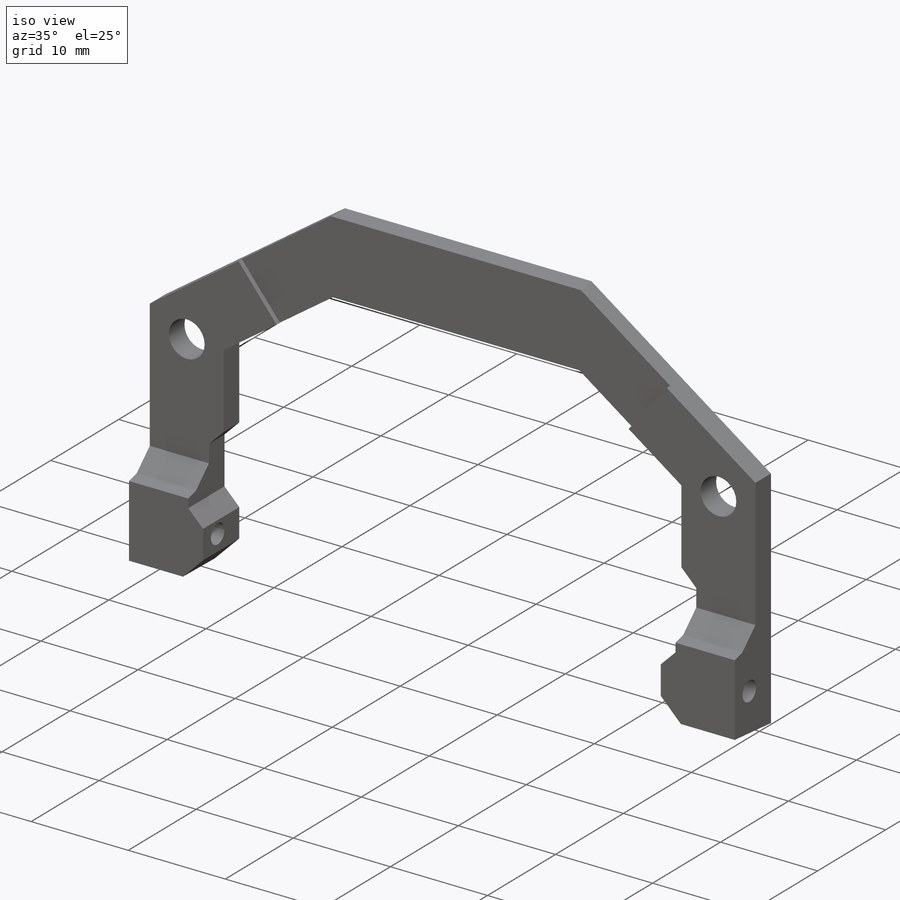
[diagram: iso view]
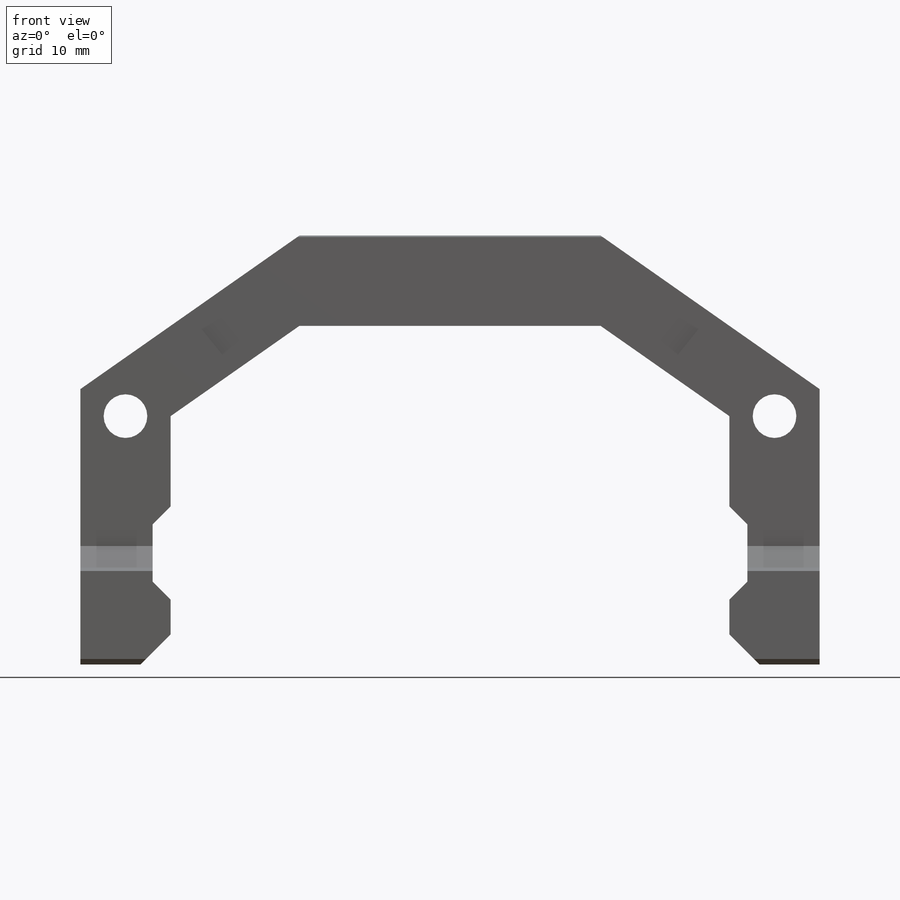
[diagram: front view]
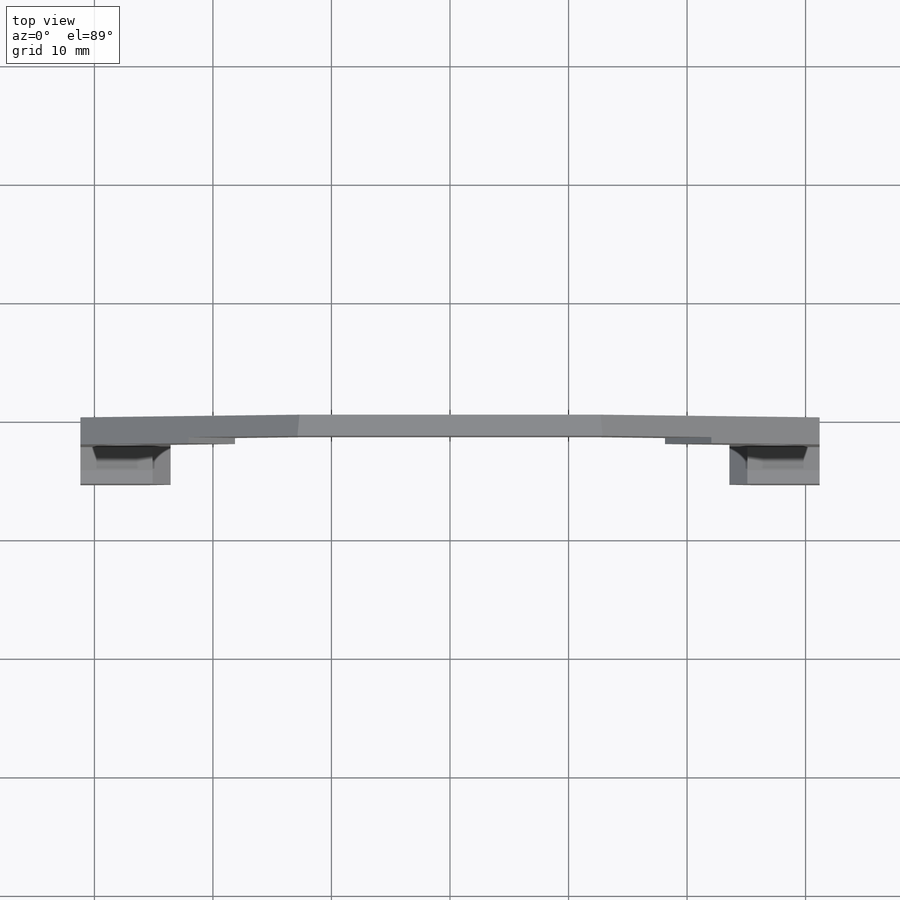
[diagram: top view]
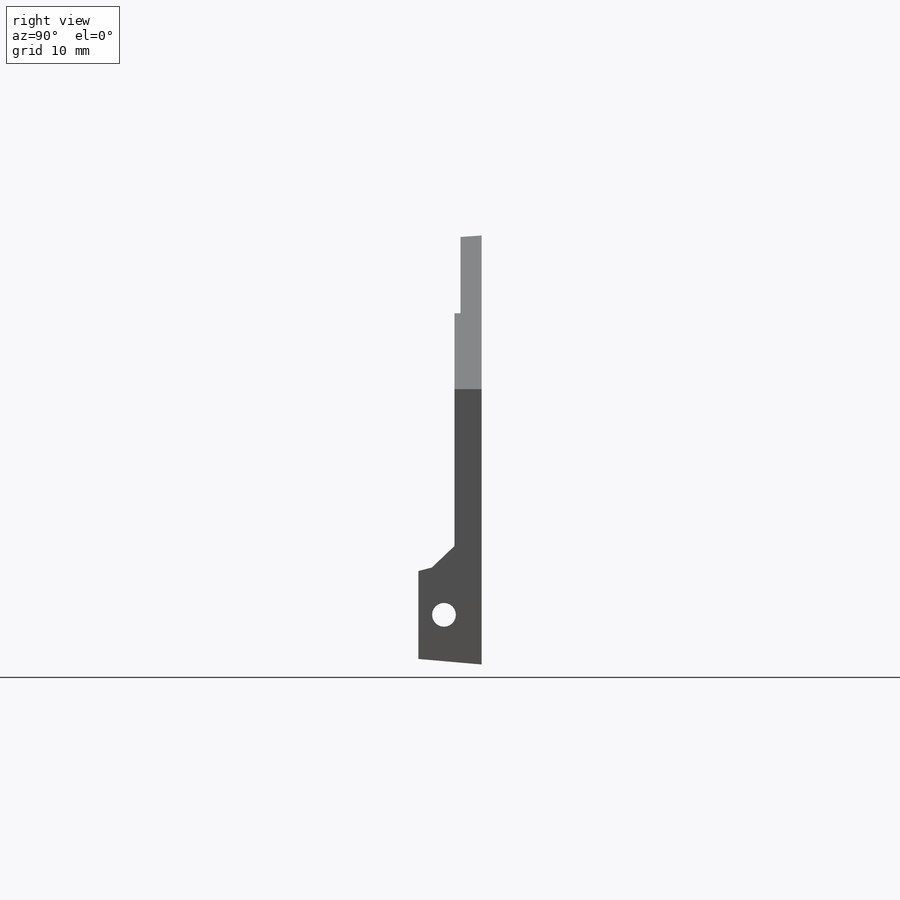
[diagram: right view]
SOLIDWORKS PART (.sldprt)
format: sldprt  version: not decoded by parser v0  size: 324,096 bytes
history: native  units: mm
features: sketch x9, cut_extrude x7, mirror x6, extrude x2, material x1 (+16 scaffold rows collapsed)
feature tree (41):
  scaffold x16  (default folders/planes/origin — collapsed)
  material  "Material <not specified>"
  sketch  "Sketch1"  dims[D1=7.62mm D2=7.62mm D3=23.5712mm D4=28.575mm]
  extrude  "Boss-Extrude1"  Depth=6.35mm
  sketch  "Sketch2"  dims[D1=2.0066mm D2=24.384mm]
  cut_extrude  "cut for lid mount screw"  [1 undecoded]
  sketch  "Sketch3"  dims[D1=3.683mm D2=15.24mm D3=36.195mm]
  cut_extrude  "cut for mounting screw"  [1 undecoded]
  mirror  "Mirror1"
  mirror  "Mirror2"
  mirror  "Mirror3"
  sketch  "Sketch4"  dims[c1.D1=5.08mm c1.D2=1.016mm c1.D3=5.08mm c2.D3=135.0deg c2.D4=5.08mm c3.D4=135.0deg c4.D4=1.016mm c5.D4=135.0deg c6.D4=5.08mm c7.D4=135.0deg c8.D4=15.24mm c8.D5=5.08mm c9.D5=135.0deg c10.D5=5.08mm c10.D1=0.6985mm c11.D1=135.0deg c11.D2=5.08mm c12.D2=135.0deg c13.D2=5.08mm c14.D2=135.0deg c14.D3=1.524mm c14.D5=2.54mm c14.D6=2.54mm]
  cut_extrude  "cut for control wire clearance"  [1 undecoded]
  mirror  "Mirror4"
  sketch  "Sketch5"  dims[D1=12.7mm]
  extrude  "Boss-Extrude2"  Depth=6.35mm
  sketch  "Sketch6"
  cut_extrude  "Cut-Extrude1"  [1 undecoded]
  mirror  "Mirror5"
  sketch  "Sketch7"  dims[c1.D1=1.5875mm c1.D2=6.35mm c2.D2=~4.058792deg c3.D2=6.35mm c4.D2=5.0deg c4.D1=2.286mm c5.D2=~6.363287mm c6.D2=5.0deg]
  cut_extrude  "Cut-Extrude2"  [1 undecoded]
  sketch  "Sketch18"  dims[D1=1.016mm]
  cut_extrude  "Cut-Extrude11"  [1 undecoded]
  sketch  "Sketch19"
  cut_extrude  "Cut-Extrude12"  Depth=0.508mm
  mirror  "Mirror6"
decode coverage: 10 of 24 modeling features carry decoded parameters
note: ~ marks probable driven/reference dimensions
note: 6 parameter values undecoded
summary: no parameter record found for 6 features
note: suppression state not decoded; provenance and decode notes live in map.json
